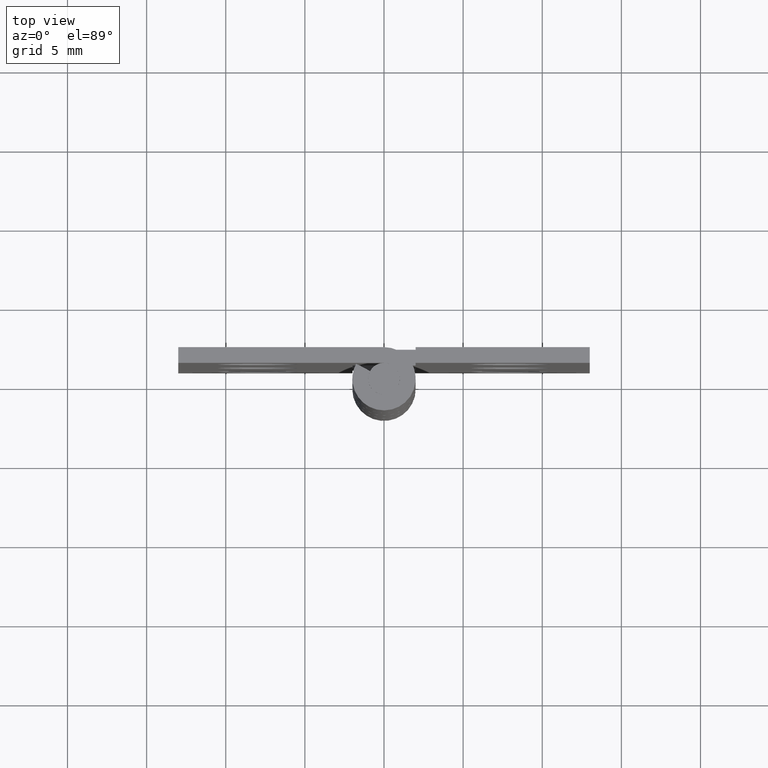
[diagram: clean part render]
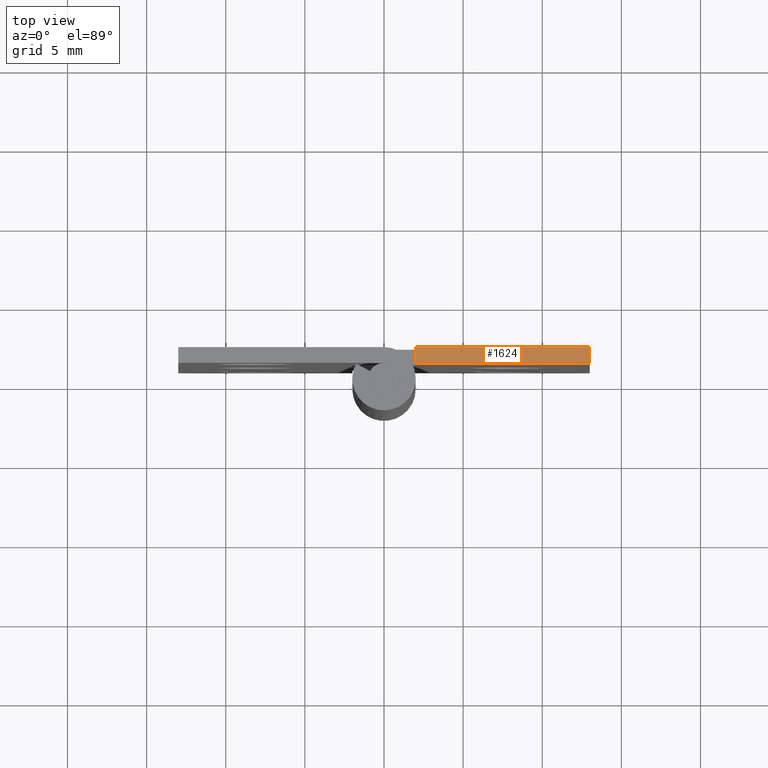
[diagram: same view with one face highlighted and labeled with its STEP entity id]
A machine part, top view. The second image highlights one B-rep face of the part: STEP entity #1624.
In plain terms, the highlighted face is a freeform B-spline surface patch.
Its self-contained STEP definition (entity closure, byte-faithful):
#1322=CARTESIAN_POINT('',(2.0,1.0,37.999992000000049));
#1323=VERTEX_POINT('',#1322);
#1329=CARTESIAN_POINT('',(2.0,2.0,37.999992000000013));
#1330=VERTEX_POINT('',#1329);
#1331=CARTESIAN_POINT('',(2.0,1.0,37.999992000000049));
#1332=CARTESIAN_POINT('',(2.0,2.0,37.999992000000013));
#1333=QUASI_UNIFORM_CURVE('',1,(#1331,#1332),.UNSPECIFIED.,.F.,.U.);
#1334=EDGE_CURVE('',#1323,#1330,#1333,.T.);
#1597=CARTESIAN_POINT('',(1.450550021320135,0.950050001938194,37.999992000000013));
#1598=CARTESIAN_POINT('',(13.549450273722860,0.950050001938194,37.999992000000013));
#1599=CARTESIAN_POINT('',(1.450550021320135,2.049950024883896,37.999992000000013));
#1600=CARTESIAN_POINT('',(13.549450273722860,2.049950024883896,37.999992000000013));
#1601=B_SPLINE_SURFACE_WITH_KNOTS('',1,1,((#1597,#1599),(#1598,#1600)),.UNSPECIFIED.,.F.,.F.,.U.,(2,2),(2,2),(0.0,12.098900252402720),(0.041708334948495,0.958291687403247),.UNSPECIFIED.);
#1602=CARTESIAN_POINT('',(13.0,2.0,37.999992000000049));
#1603=VERTEX_POINT('',#1602);
#1604=CARTESIAN_POINT('',(13.0,2.0,37.999992000000049));
#1605=CARTESIAN_POINT('',(2.0,2.0,37.999992000000013));
#1606=QUASI_UNIFORM_CURVE('',1,(#1604,#1605),.UNSPECIFIED.,.F.,.U.);
#1607=EDGE_CURVE('',#1603,#1330,#1606,.T.);
#1608=ORIENTED_EDGE('',*,*,#1607,.T.);
#1609=ORIENTED_EDGE('',*,*,#1334,.F.);
#1610=CARTESIAN_POINT('',(13.0,1.0,37.999992000000049));
#1611=VERTEX_POINT('',#1610);
#1612=CARTESIAN_POINT('',(2.0,1.0,37.999992000000049));
#1613=CARTESIAN_POINT('',(13.0,1.0,37.999992000000049));
#1614=QUASI_UNIFORM_CURVE('',1,(#1612,#1613),.UNSPECIFIED.,.F.,.U.);
#1615=EDGE_CURVE('',#1323,#1611,#1614,.T.);
#1616=ORIENTED_EDGE('',*,*,#1615,.T.);
#1617=CARTESIAN_POINT('',(13.0,1.0,37.999992000000049));
#1618=CARTESIAN_POINT('',(13.0,2.0,37.999992000000049));
#1619=QUASI_UNIFORM_CURVE('',1,(#1617,#1618),.UNSPECIFIED.,.F.,.U.);
#1620=EDGE_CURVE('',#1611,#1603,#1619,.T.);
#1621=ORIENTED_EDGE('',*,*,#1620,.T.);
#1622=EDGE_LOOP('',(#1608,#1609,#1616,#1621));
#1623=FACE_OUTER_BOUND('',#1622,.T.);
#1624=ADVANCED_FACE('',(#1623),#1601,.T.);